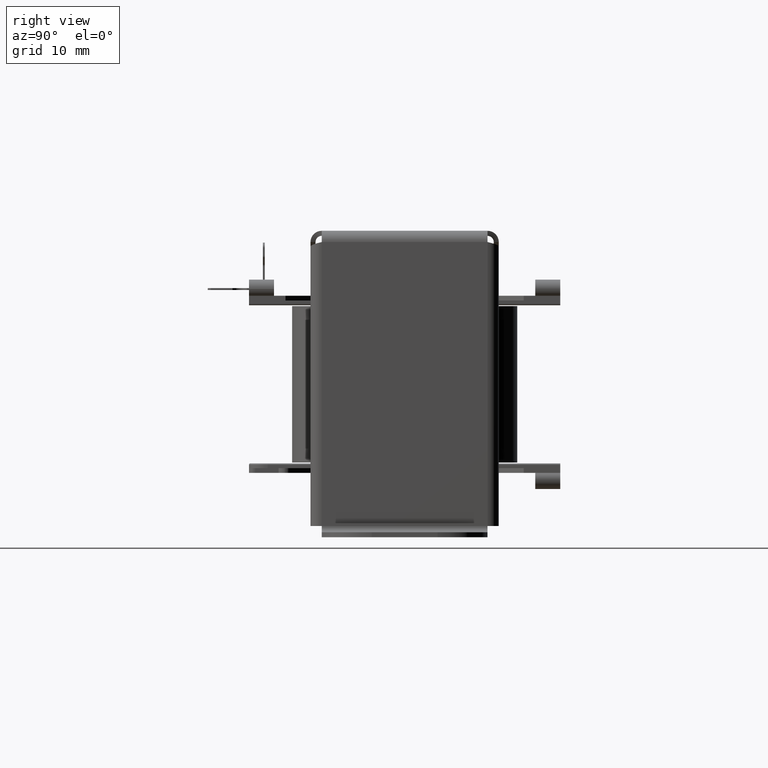
[diagram: clean part render]
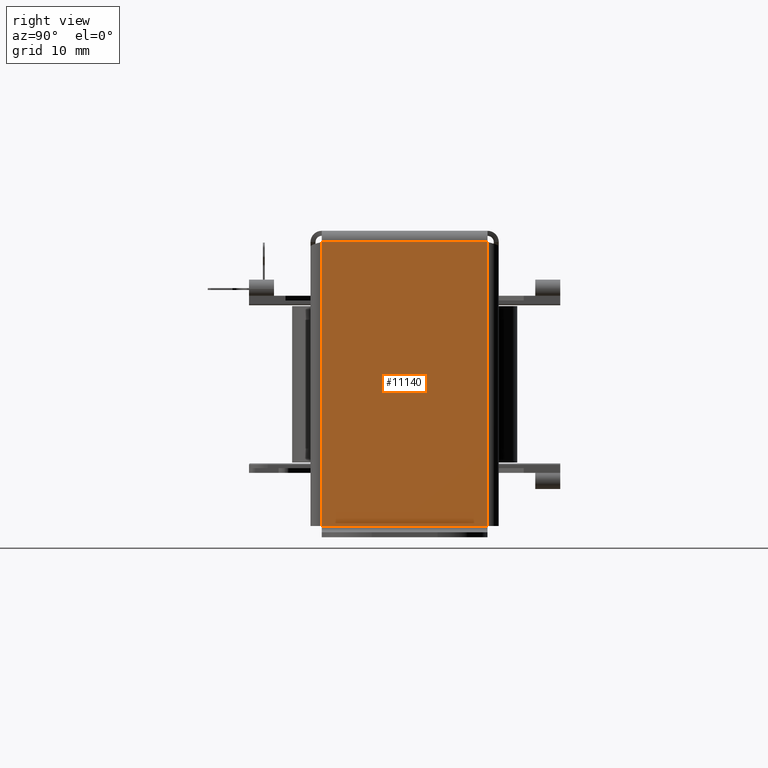
[diagram: same view with one face highlighted and labeled with its STEP entity id]
A machine part, right view. The second image highlights one B-rep face of the part: STEP entity #11140.
In plain terms, the highlighted planar face has unit normal (-1, -0, -0).
Its self-contained STEP definition (entity closure, byte-faithful):
#1110 = CARTESIAN_POINT ( 'NONE',  ( 30.00000000000015987, -46.20000000000000995, 13.24999999999999467 ) ) ;
#1301 = CARTESIAN_POINT ( 'NONE',  ( 30.00000000000015632, -46.20000000000000995, -3.927675794664489493E-15 ) ) ;
#1722 = DIRECTION ( 'NONE',  ( 3.439537926505737320E-15, -1.000000000000000000, 0.000000000000000000 ) ) ;
#2144 = DIRECTION ( 'NONE',  ( -1.309225264888156377E-16, 8.758115402030106693E-47, -1.000000000000000000 ) ) ;
#2985 = CARTESIAN_POINT ( 'NONE',  ( 30.00000000000000000, 1.044932181643052805E-13, 13.24999999999999822 ) ) ;
#3197 = CARTESIAN_POINT ( 'NONE',  ( 29.99999999999999645, 1.059793228662466097E-13, -3.927675794664468982E-15 ) ) ;
#3925 = CARTESIAN_POINT ( 'NONE',  ( 29.99999999999999645, 1.059793228662466097E-13, -13.25000000000000178 ) ) ;
#5145 = LINE ( 'NONE', #1301, #9050 ) ;
#5544 = EDGE_CURVE ( 'NONE', #14084, #10929, #9110, .T. ) ;
#5754 = DIRECTION ( 'NONE',  ( -1.000000000000000000, -3.439537926505737320E-15, 1.309225264888156377E-16 ) ) ;
#6461 = ORIENTED_EDGE ( 'NONE', *, *, #12811, .T. ) ;
#6949 = FACE_OUTER_BOUND ( 'NONE', #13015, .T. ) ;
#7562 = AXIS2_PLACEMENT_3D ( 'NONE', #3197, #5754, #1722 ) ;
#8513 = PLANE ( 'NONE',  #7562 ) ;
#8559 = DIRECTION ( 'NONE',  ( 3.439537926505737320E-15, -1.000000000000000000, -1.121588454295349040E-16 ) ) ;
#8832 = EDGE_CURVE ( 'NONE', #17881, #10929, #9795, .T. ) ;
#8922 = ORIENTED_EDGE ( 'NONE', *, *, #15442, .T. ) ;
#8955 = ORIENTED_EDGE ( 'NONE', *, *, #8832, .T. ) ;
#9050 = VECTOR ( 'NONE', #11114, 1000.000000000000000 ) ;
#9110 = LINE ( 'NONE', #14695, #12442 ) ;
#9795 = LINE ( 'NONE', #3925, #9925 ) ;
#9925 = VECTOR ( 'NONE', #15363, 1000.000000000000000 ) ;
#10364 = ORIENTED_EDGE ( 'NONE', *, *, #5544, .F. ) ;
#10929 = VERTEX_POINT ( 'NONE', #17295 ) ;
#11114 = DIRECTION ( 'NONE',  ( -1.309225264888156377E-16, 8.758115402030106693E-47, -1.000000000000000000 ) ) ;
#11140 = ADVANCED_FACE ( 'NONE', ( #6949 ), #8513, .F. ) ;
#11814 = CARTESIAN_POINT ( 'NONE',  ( 29.99999999999999289, -0.7999999999999999334, 13.25000000000000000 ) ) ;
#12442 = VECTOR ( 'NONE', #2144, 1000.000000000000000 ) ;
#12811 = EDGE_CURVE ( 'NONE', #14084, #13372, #15517, .T. ) ;
#13015 = EDGE_LOOP ( 'NONE', ( #10364, #6461, #8922, #8955 ) ) ;
#13372 = VERTEX_POINT ( 'NONE', #1110 ) ;
#14084 = VERTEX_POINT ( 'NONE', #11814 ) ;
#14695 = CARTESIAN_POINT ( 'NONE',  ( 29.99999999999999645, -0.7999999999999959366, -13.25000000000000178 ) ) ;
#15363 = DIRECTION ( 'NONE',  ( -3.439537926505737320E-15, 1.000000000000000000, -8.758115402030106693E-47 ) ) ;
#15442 = EDGE_CURVE ( 'NONE', #13372, #17881, #5145, .T. ) ;
#15517 = LINE ( 'NONE', #2985, #15749 ) ;
#15749 = VECTOR ( 'NONE', #8559, 1000.000000000000000 ) ;
#17295 = CARTESIAN_POINT ( 'NONE',  ( 29.99999999999999645, -0.7999999999999958256, -13.25000000000000178 ) ) ;
#17483 = CARTESIAN_POINT ( 'NONE',  ( 30.00000000000015632, -46.20000000000000995, -13.25000000000000178 ) ) ;
#17881 = VERTEX_POINT ( 'NONE', #17483 ) ;